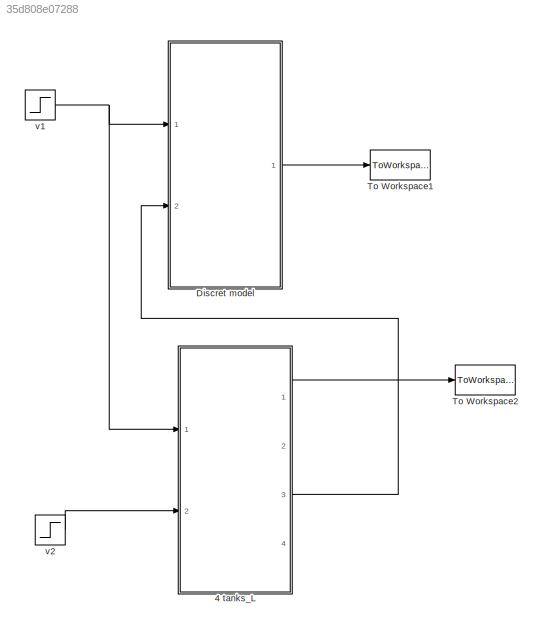
MODEL mdl_35d808e07288
KIND model
CONFIG AbsTol = auto
CONFIG EnableMultiTasking = on
CONFIG FixedStep = Ts
CONFIG MaxStep = auto
CONFIG MinStep = auto
CONFIG RelTol = 1e-3
CONFIG SampleTimeConstraint = Unconstrained
CONFIG SolverName = ode3
CONFIG StartTime = 0.0
CONFIG StopTime = 1000
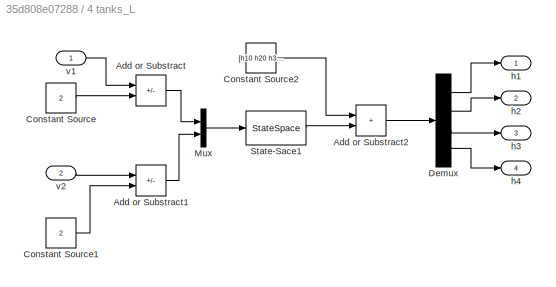
BLOCK [SubSystem] 4 tanks_L
  Ports = [2, 4]
  RequestExecContextInheritance = off
BLOCK [Sum] 4 tanks_L/Add or Substract
  IconShape = rectangular
  Inputs = +-
  Ports = [2, 1]
BLOCK [Sum] 4 tanks_L/Add or Substract1
  IconShape = rectangular
  Inputs = +-
  Ports = [2, 1]
BLOCK [Sum] 4 tanks_L/Add or Substract2
  IconShape = rectangular
  Ports = [2, 1]
BLOCK [Constant] 4 tanks_L/Constant Source
  Value = 2
BLOCK [Constant] 4 tanks_L/Constant Source1
  Value = 2
BLOCK [Constant] 4 tanks_L/Constant Source2
  Value = [h10 h20 h30 h40]
BLOCK [Demux] 4 tanks_L/Demux
  Ports = [1, 4]
BLOCK [Mux] 4 tanks_L/Mux
  DisplayOption = bar
  Inputs = 2
  Ports = [2, 1]
BLOCK [StateSpace] 4 tanks_L/State-Sace1
  A = A
  B = B
  C = C
  D = D
  InitialCondition = 0
  Ports = [1, 1]
BLOCK [Outport] 4 tanks_L/h1 
BLOCK [Outport] 4 tanks_L/h2 
  Port = 2
BLOCK [Outport] 4 tanks_L/h3 
  Port = 3
BLOCK [Outport] 4 tanks_L/h4 
  Port = 4
BLOCK [Inport] 4 tanks_L/v1
BLOCK [Inport] 4 tanks_L/v2
  Port = 2
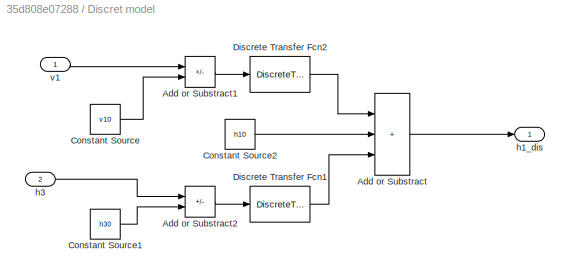
BLOCK [SubSystem] Discret model
  Ports = [2, 1]
  RequestExecContextInheritance = off
BLOCK [Sum] Discret model/Add or Substract
  IconShape = rectangular
  Inputs = +++
  Ports = [3, 1]
BLOCK [Sum] Discret model/Add or Substract1
  IconShape = rectangular
  Inputs = +-
  Ports = [2, 1]
BLOCK [Sum] Discret model/Add or Substract2
  IconShape = rectangular
  Inputs = +-
  Ports = [2, 1]
BLOCK [Constant] Discret model/Constant Source
  Value = v10
BLOCK [Constant] Discret model/Constant Source1
  Value = h30
BLOCK [Constant] Discret model/Constant Source2
  Value = h10
BLOCK [DiscreteTransferFcn] Discret model/Discrete Transfer Fcn1
  Denominator = [1, -(1+alpha)]
  InputPortMap = u0
  Numerator = [beta]
  Ports = [1, 1]
  SampleTime = 1
BLOCK [DiscreteTransferFcn] Discret model/Discrete Transfer Fcn2
  Denominator = [1, -(1+alpha)]
  InputPortMap = u0
  Numerator = [omega]
  Ports = [1, 1]
  SampleTime = 1
BLOCK [Outport] Discret model/h1_dis 
BLOCK [Inport] Discret model/h3
  Port = 2
BLOCK [Inport] Discret model/v1
BLOCK [ToWorkspace] To Workspace1
  MaxDataPoints = inf
  Ports = [1]
  SampleTime = -1
  VariableName = h1_dis
BLOCK [ToWorkspace] To Workspace2
  MaxDataPoints = inf
  Ports = [1]
  SampleTime = -1
  VariableName = h1_lin
BLOCK [Step] v1
  After = v11
  Before = v10
  SampleTime = 0
  Time = t1
BLOCK [Step] v2
  After = v22
  Before = v20
  SampleTime = 0
  Time = t2
LINE 4 tanks_L/Add or Substract1:1 -> 4 tanks_L/Mux:2
LINE 4 tanks_L/Add or Substract2:1 -> 4 tanks_L/Demux:1
LINE 4 tanks_L/Add or Substract:1 -> 4 tanks_L/Mux:1
LINE 4 tanks_L/Constant Source1:1 -> 4 tanks_L/Add or Substract1:2
LINE 4 tanks_L/Constant Source2:1 -> 4 tanks_L/Add or Substract2:1
LINE 4 tanks_L/Constant Source:1 -> 4 tanks_L/Add or Substract:2
LINE 4 tanks_L/Demux:1 -> 4 tanks_L/h1 :1
LINE 4 tanks_L/Demux:2 -> 4 tanks_L/h2 :1
LINE 4 tanks_L/Demux:3 -> 4 tanks_L/h3 :1
LINE 4 tanks_L/Demux:4 -> 4 tanks_L/h4 :1
LINE 4 tanks_L/Mux:1 -> 4 tanks_L/State-Sace1:1
LINE 4 tanks_L/State-Sace1:1 -> 4 tanks_L/Add or Substract2:2
LINE 4 tanks_L/v1:1 -> 4 tanks_L/Add or Substract:1
LINE 4 tanks_L/v2:1 -> 4 tanks_L/Add or Substract1:1
LINE 4 tanks_L:1 -> To Workspace2:1
LINE 4 tanks_L:3 -> Discret model:2
LINE Discret model/Add or Substract1:1 -> Discret model/Discrete Transfer Fcn2:1
LINE Discret model/Add or Substract2:1 -> Discret model/Discrete Transfer Fcn1:1
LINE Discret model/Add or Substract:1 -> Discret model/h1_dis :1
LINE Discret model/Constant Source1:1 -> Discret model/Add or Substract2:2
LINE Discret model/Constant Source2:1 -> Discret model/Add or Substract:2
LINE Discret model/Constant Source:1 -> Discret model/Add or Substract1:2
LINE Discret model/Discrete Transfer Fcn1:1 -> Discret model/Add or Substract:3
LINE Discret model/Discrete Transfer Fcn2:1 -> Discret model/Add or Substract:1
LINE Discret model/h3:1 -> Discret model/Add or Substract2:1
LINE Discret model/v1:1 -> Discret model/Add or Substract1:1
LINE Discret model:1 -> To Workspace1:1
NET v1:1 -> 4 tanks_L:1, Discret model:1
LINE v2:1 -> 4 tanks_L:2
note: NET lines group one-source signal fan-out (src -> all destinations, sorted); 1:1 wires keep LINE
